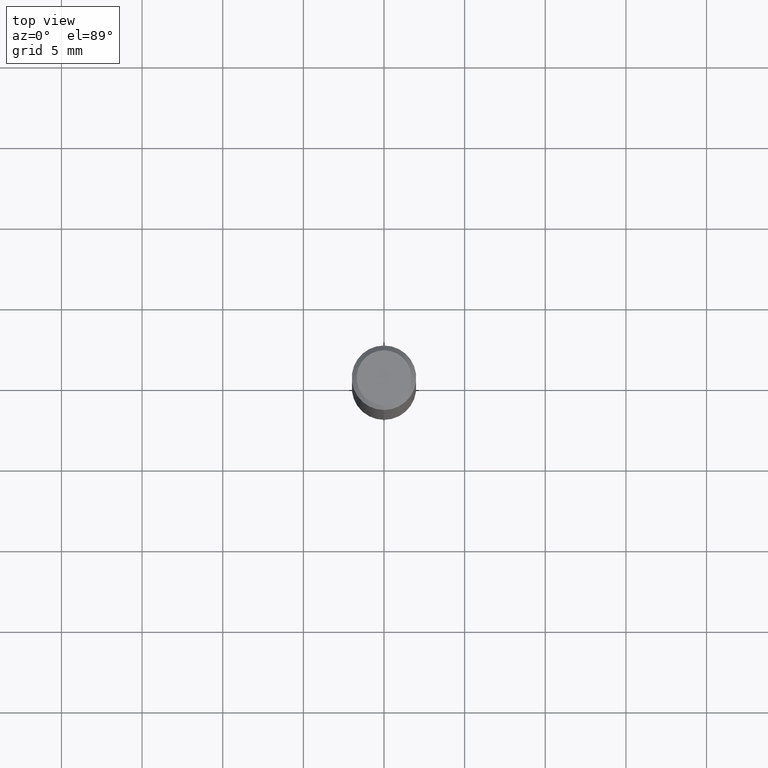
[diagram: clean part render]
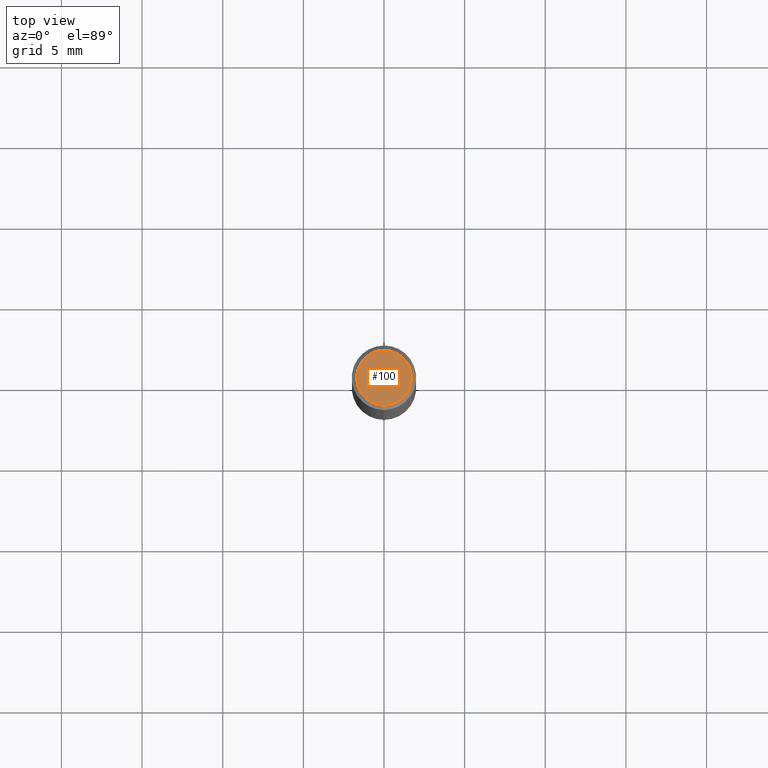
[diagram: same view with one face highlighted and labeled with its STEP entity id]
A machine part, top view. The second image highlights one B-rep face of the part: STEP entity #100.
In plain terms, the highlighted planar face has unit normal (-0, 0, 1).
Its self-contained STEP definition (entity closure, byte-faithful):
#100=ADVANCED_FACE('',(#238),#239,.T.);
#138=VERTEX_POINT('',#282);
#142=VERTEX_POINT('',#286);
#172=EDGE_CURVE('',#138,#142,#322,.T.);
#196=EDGE_CURVE('',#142,#138,#348,.T.);
#238=FACE_OUTER_BOUND('',#385,.T.);
#239=PLANE('',#386);
#282=CARTESIAN_POINT('',(0.0,1.7,0.0));
#286=CARTESIAN_POINT('',(2.08183080149804E-016,-1.7,0.0));
#322=CIRCLE('',#485,1.7);
#348=CIRCLE('',#523,1.7);
#385=EDGE_LOOP('',(#557,#558));
#386=AXIS2_PLACEMENT_3D('',#559,#560,#561);
#485=AXIS2_PLACEMENT_3D('',#666,#667,#668);
#523=AXIS2_PLACEMENT_3D('',#696,#697,#698);
#557=ORIENTED_EDGE('',*,*,#172,.F.);
#558=ORIENTED_EDGE('',*,*,#196,.F.);
#559=CARTESIAN_POINT('',(0.0,0.85,0.0));
#560=DIRECTION('',(-0.0,0.0,1.0));
#561=DIRECTION('',(0.0,-1.0,0.0));
#666=CARTESIAN_POINT('',(0.0,0.0,0.0));
#667=DIRECTION('',(0.0,0.0,-1.0));
#668=DIRECTION('',(0.0,1.0,0.0));
#696=CARTESIAN_POINT('',(0.0,0.0,0.0));
#697=DIRECTION('',(0.0,0.0,-1.0));
#698=DIRECTION('',(0.0,1.0,0.0));